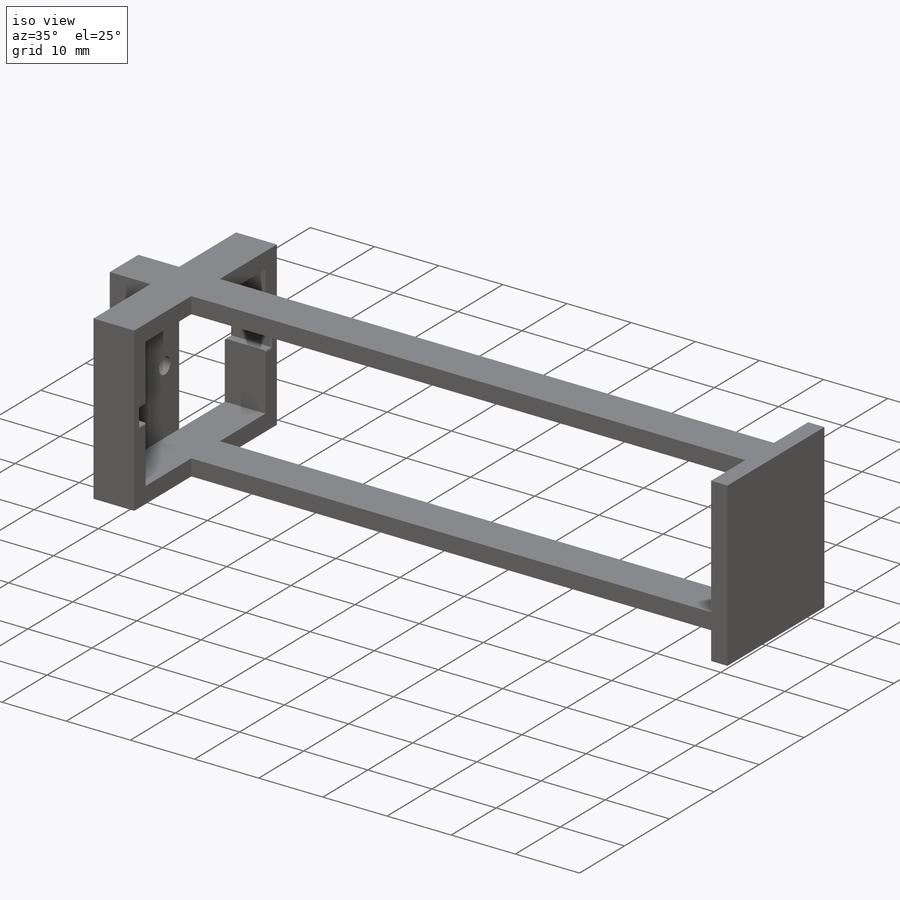
[diagram: iso view]
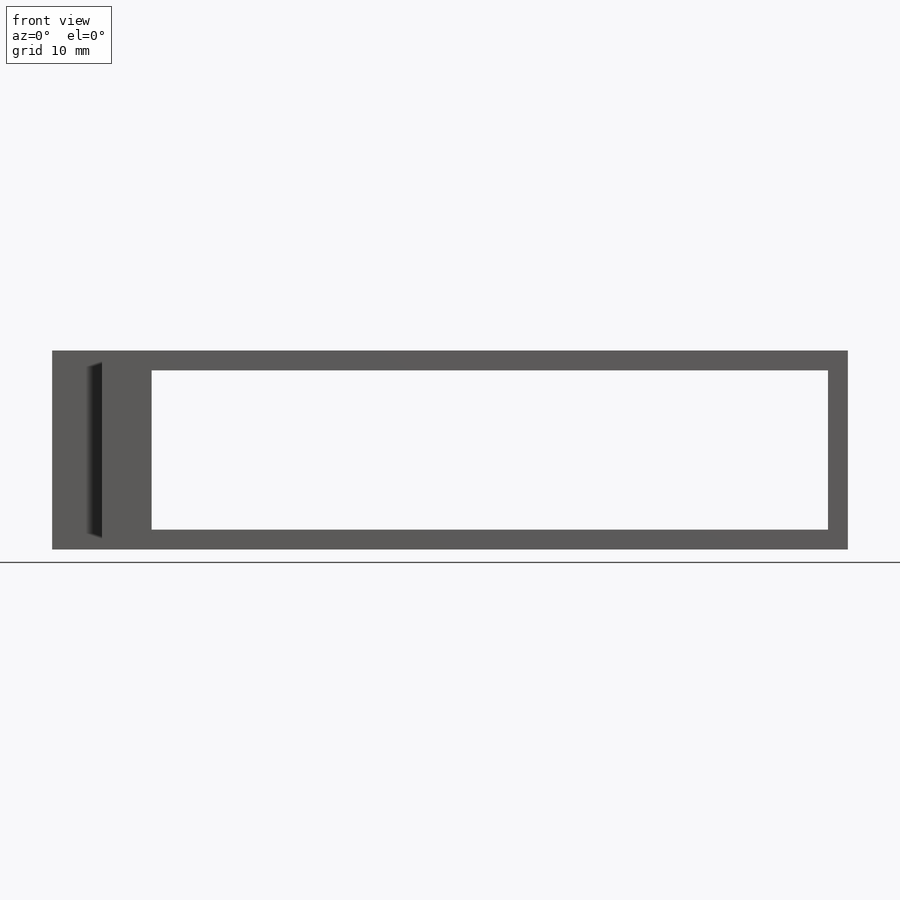
[diagram: front view]
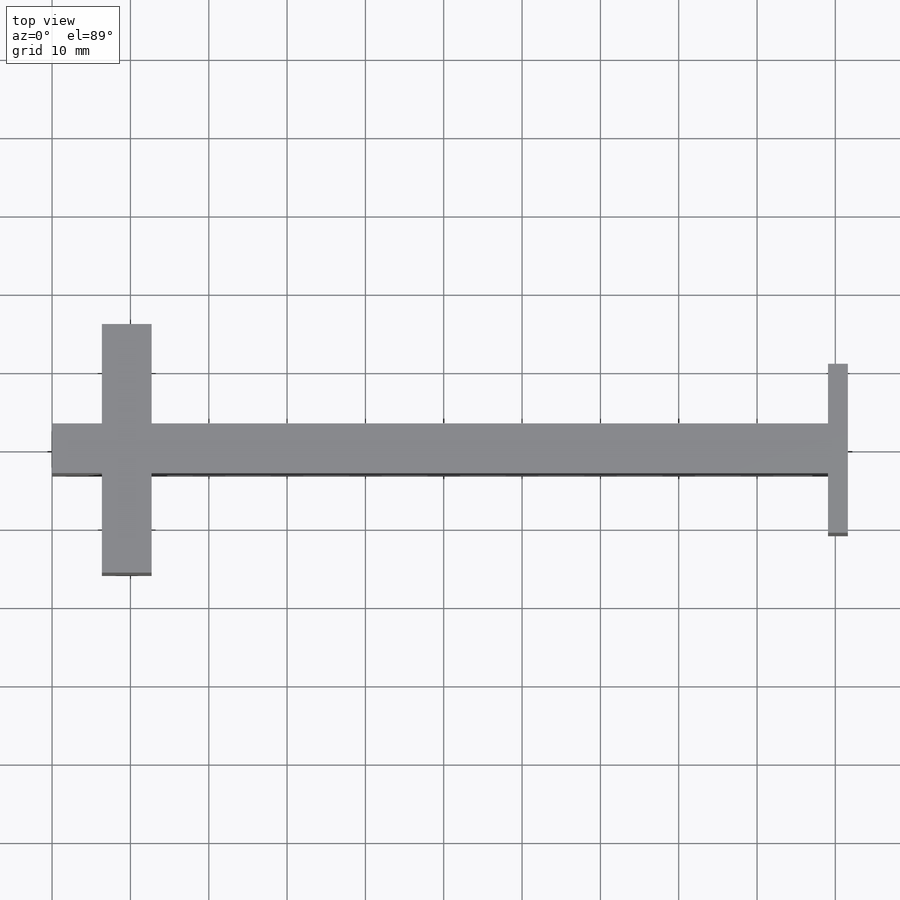
[diagram: top view]
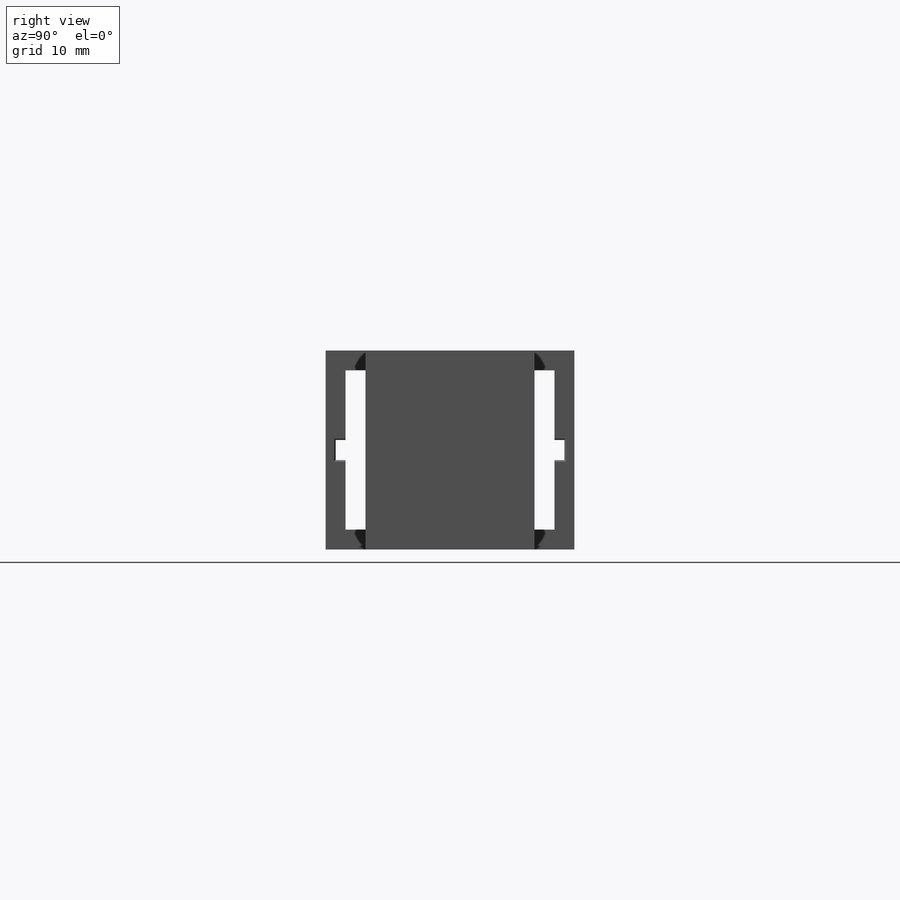
[diagram: right view]
SOLIDWORKS PART (.sldprt)
format: sldprt  version: not decoded by parser v0  size: 265,216 bytes
history: native  units: mm
features: sketch x6, extrude x3, cut_extrude x3, fillet x2, mirror x2, material x1, plane x1 (+11 scaffold rows collapsed)
feature tree (29):
  scaffold x11  (default folders/planes/origin — collapsed)
  material  "Material <not specified>"
  sketch  "Sketch1"  dims[D1=12.7mm D2=12.7mm D3=25.4mm D4=101.6mm D5=101.6mm D6=50.8mm]
  extrude  "Boss-Extrude1"  Depth=6.35mm
  plane  "Plane1"  Offset=12.7mm
  sketch  "Sketch2"  dims[c1.D1=~14.723319mm c2.D1=0.05deg c2.D2=2.54mm c3.D1=~14.723319mm c4.D1=0.05deg c5.D1=12.7mm c5.D3=10.16mm c5.D4=2.54mm c5.D5=25.4mm]
  extrude  "Boss-Extrude2"  Depth=6.35mm
  sketch  "Sketch4"  dims[D1=2.54mm]
  cut_extrude  "Cut-Extrude2"  Depth=1.27mm
  fillet  "Fillet2"  Radius=0.254mm
  fillet  "Fillet3"  Radius=0.254mm
  mirror  "Mirror4"
  sketch  "Sketch6"  dims[D1=7.62mm]
  extrude  "Boss-Extrude4"  Depth=2.54mm
  mirror  "Mirror5"
  sketch  "Sketch7"  dims[D1=6.35mm D2=2.54mm]
  cut_extrude  "Cut-Extrude3"  [1 undecoded]
  sketch  "Sketch8"  dims[D1=2.54mm]
  cut_extrude  "Cut-Extrude4"  [1 undecoded]
decode coverage: 12 of 16 modeling features carry decoded parameters
note: ~ marks probable driven/reference dimensions
note: 2 parameter values undecoded
note: suppression state not decoded; provenance and decode notes live in map.json
